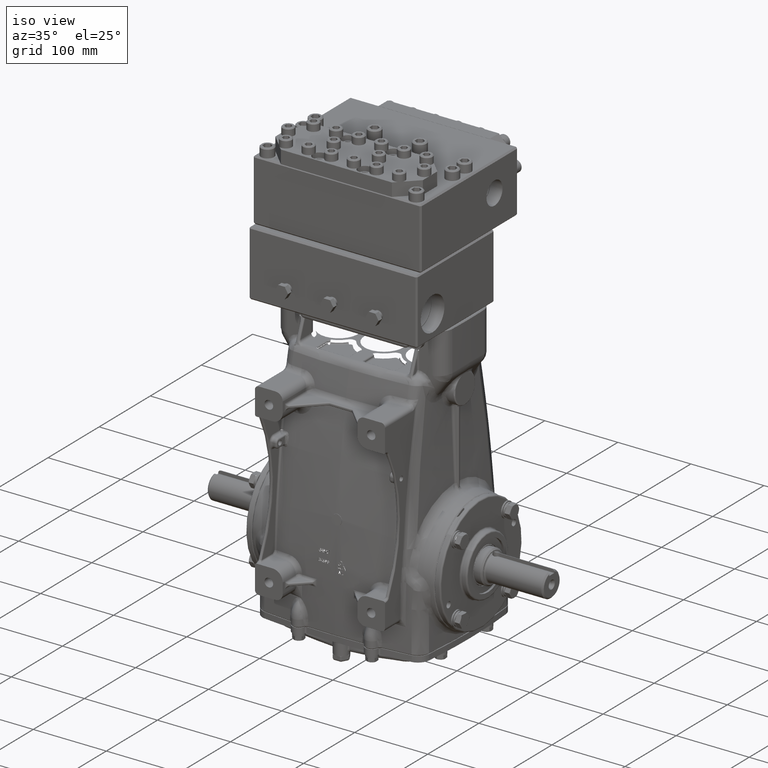
[diagram: clean part render]
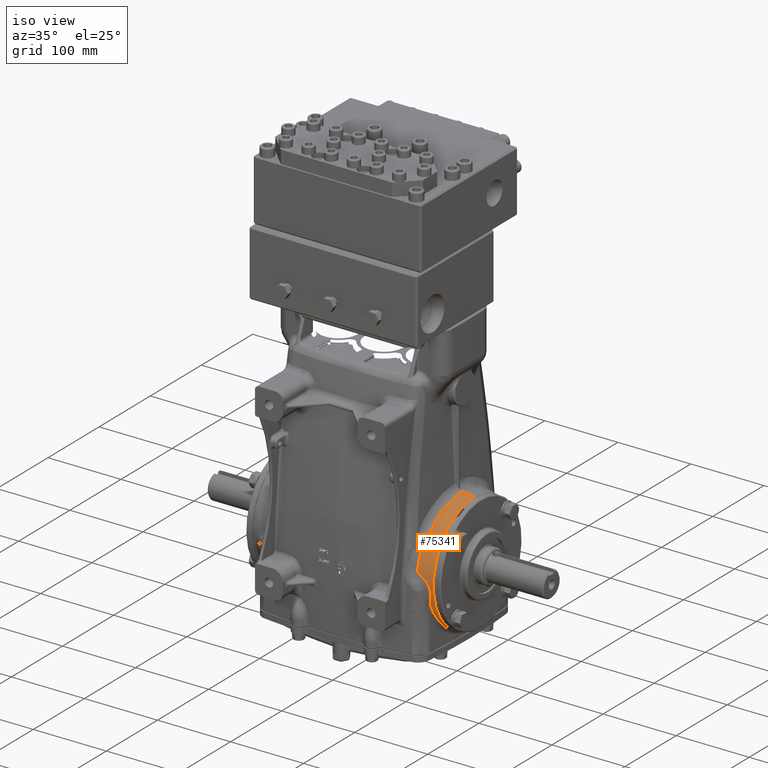
[diagram: same view with one face highlighted and labeled with its STEP entity id]
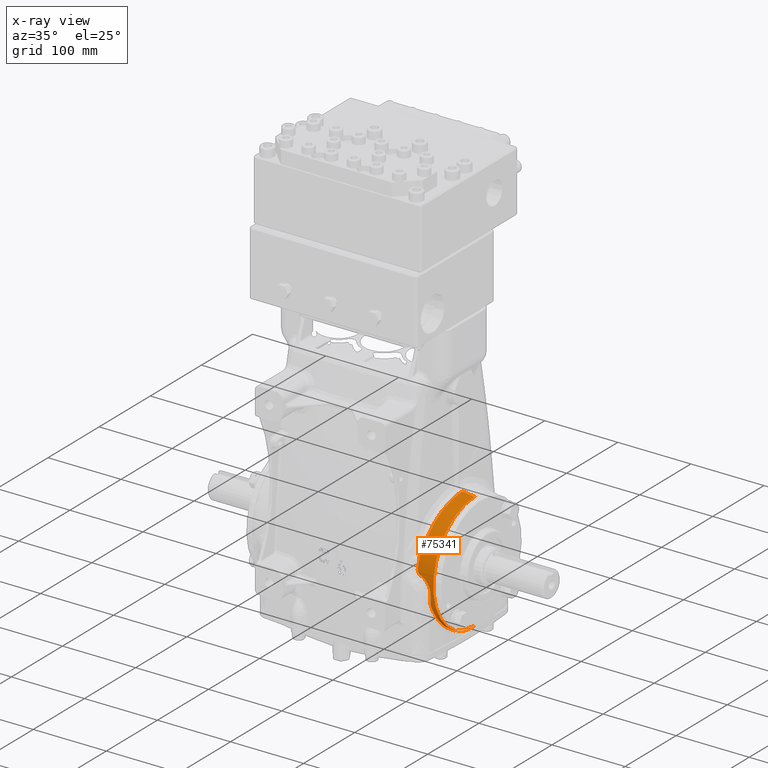
[diagram: x-ray of the same camera — body ghosted, the highlighted face saturated]
A machine part, iso view. The second image highlights one B-rep face of the part: STEP entity #75341.
The next image is the same camera in x-ray: the body ghosted, the highlighted face saturated — about 0% of this face is hidden behind the body in this view.
In plain terms, the highlighted toroidal blend (fillet) surface has major radius 710.174 mm and minor (blend) radius 800 mm.
Its self-contained STEP definition (entity closure, byte-faithful):
#826 = CARTESIAN_POINT ( 'NONE',  ( 4.065177188191593238, -3.083984889762754644, 1.098068107524425852 ) ) ;
#3299 = CARTESIAN_POINT ( 'NONE',  ( 4.790303181778289954, -1.127149556421079390, -2.966354360120121214 ) ) ;
#3318 = DIRECTION ( 'NONE',  ( 1.014631576207059362E-16, 0.0000000000000000000, -1.000000000000000000 ) ) ;
#3615 = DIRECTION ( 'NONE',  ( 0.0000000000000000000, 1.000000000000000000, 0.0000000000000000000 ) ) ;
#3872 = CARTESIAN_POINT ( 'NONE',  ( 4.637802879207589157, -2.974517227941448461, -1.161161906720954651 ) ) ;
#4908 = CARTESIAN_POINT ( 'NONE',  ( 4.241293303835878881, -3.226001539249478522, 0.3907520896382901676 ) ) ;
#5583 = ORIENTED_EDGE ( 'NONE', *, *, #68924, .F. ) ;
#6037 = ORIENTED_EDGE ( 'NONE', *, *, #47970, .F. ) ;
#6362 = AXIS2_PLACEMENT_3D ( 'NONE', #48687, #85116, #3318 ) ;
#7848 = CARTESIAN_POINT ( 'NONE',  ( 4.235682771569069693, -0.6266466288404147766, 3.191829271269768231 ) ) ;
#7949 = B_SPLINE_CURVE_WITH_KNOTS ( 'NONE', 3,
 ( #21232, #57655, #94039, #12242, #48661, #85096, #3299, #39742, #76127, #112506, #30771, #67186, #103577, #21811, #58234, #96234 ),
 .UNSPECIFIED., .F., .F.,
 ( 4, 2, 2, 2, 2, 2, 2, 4 ),
 ( 0.5000483756456942652, 0.5624999999999996669, 0.6249999999999996669, 0.6874999999999996669, 0.7499999999999997780, 0.8749999999999997780, 0.9375000000000000000, 1.000000000000000000 ),
 .UNSPECIFIED. ) ;
#8910 = CARTESIAN_POINT ( 'NONE',  ( 4.726144590640167564, -3.154645668425971827, -0.4274351538967189890 ) ) ;
#9139 = VERTEX_POINT ( 'NONE', #48382 ) ;
#9749 = CARTESIAN_POINT ( 'NONE',  ( 4.068196207595590863, -3.204746991281274049, 0.6630307251519698131 ) ) ;
#10223 = B_SPLINE_CURVE_WITH_KNOTS ( 'NONE', 3,
 ( #45164, #81580, #117965, #36227, #72621, #108993, #27252, #63665 ),
 .UNSPECIFIED., .F., .F.,
 ( 4, 2, 2, 4 ),
 ( 0.0000000000000000000, 0.5000000000000000000, 0.7499999999999998890, 1.000000000000000000 ),
 .UNSPECIFIED. ) ;
#10233 = CARTESIAN_POINT ( 'NONE',  ( 4.874534027504089373, 0.0000000000000000000, -3.156962035488048102 ) ) ;
#10466 = EDGE_CURVE ( 'NONE', #86506, #50681, #67844, .T. ) ;
#12242 = CARTESIAN_POINT ( 'NONE',  ( 4.806998052755426798, -0.5733832258980167129, -3.118500223422494333 ) ) ;
#13190 = CARTESIAN_POINT ( 'NONE',  ( 5.568718060300463558E-15, 3.424064387676790698E-15, -27.95960753795100473 ) ) ;
#13372 = CARTESIAN_POINT ( 'NONE',  ( 4.874534027504088485, -3.866163451790151959E-16, 3.156962035488049434 ) ) ;
#13838 = CARTESIAN_POINT ( 'NONE',  ( 4.476645519390706873, -3.208994383556206920, 0.2276715050428013698 ) ) ;
#15268 = VERTEX_POINT ( 'NONE', #13372 ) ;
#16376 = AXIS2_PLACEMENT_3D ( 'NONE', #57972, #3615, #40072 ) ;
#16814 = CARTESIAN_POINT ( 'NONE',  ( 4.220173851410993215, -1.229921036881801433, 3.013587734413658570 ) ) ;
#17881 = CARTESIAN_POINT ( 'NONE',  ( 4.659041407288404990, -3.069411880862395581, -0.8719676970051276621 ) ) ;
#18468 = ORIENTED_EDGE ( 'NONE', *, *, #47822, .F. ) ;
#20188 = B_SPLINE_CURVE_WITH_KNOTS ( 'NONE', 3,
 ( #71747, #108121, #26388, #62789 ),
 .UNSPECIFIED., .F., .F.,
 ( 4, 4 ),
 ( 0.0000000000000000000, 1.000000000000000000 ),
 .UNSPECIFIED. ) ;
#21232 = CARTESIAN_POINT ( 'NONE',  ( 4.812441923013113687, -1.481110120753864741E-07, -3.166625558008697272 ) ) ;
#21632 = CIRCLE ( 'NONE', #88357, 31.49606299212598515 ) ;
#21811 = CARTESIAN_POINT ( 'NONE',  ( 4.686071756050094628, -2.674197270636395007, -1.737510335107369741 ) ) ;
#22135 = EDGE_LOOP ( 'NONE', ( #50288, #59067, #72796, #6037, #61235, #18468, #70124, #37621, #24852, #5583, #63191 ) ) ;
#22827 = CARTESIAN_POINT ( 'NONE',  ( 4.701623159952063702, -3.183729317627611355, -0.1365620709503548025 ) ) ;
#23970 = CARTESIAN_POINT ( 'NONE',  ( 4.874534027504088485, 0.0000000000000000000, 4.945856143601376801E-16 ) ) ;
#24852 = ORIENTED_EDGE ( 'NONE', *, *, #42240, .F. ) ;
#25792 = CARTESIAN_POINT ( 'NONE',  ( 4.192740757286638420, -1.893362396004754089, 2.661075382058560646 ) ) ;
#26388 = CARTESIAN_POINT ( 'NONE',  ( 4.146795280029016872, -2.739778042975806294, 1.784677835696039105 ) ) ;
#26857 = CARTESIAN_POINT ( 'NONE',  ( 4.637802879207589157, -2.974517227941448461, -1.161161906720954651 ) ) ;
#27252 = CARTESIAN_POINT ( 'NONE',  ( 4.065899536981142148, -3.210822228740024542, 0.6351427620540452956 ) ) ;
#28287 = CARTESIAN_POINT ( 'NONE',  ( 4.073807278298714252, -2.959947933500720829, 1.394250575635964218 ) ) ;
#29954 = CARTESIAN_POINT ( 'NONE',  ( 4.653840769993426996, -2.927867021512045032, -1.274098702111998715 ) ) ;
#30771 = CARTESIAN_POINT ( 'NONE',  ( 4.734056748507328827, -2.115109540578937963, -2.390187588732937574 ) ) ;
#31631 = CIRCLE ( 'NONE', #98366, 3.156962035488045437 ) ;
#34764 = CARTESIAN_POINT ( 'NONE',  ( 4.154195439504829501, -2.605888995820426324, 1.960963033933472488 ) ) ;
#35102 = VERTEX_POINT ( 'NONE', #3872 ) ;
#35351 = CARTESIAN_POINT ( 'NONE',  ( 4.240991282790828265, 4.693753063019659436E-11, 3.249621495888693978 ) ) ;
#35957 = B_SPLINE_CURVE_WITH_KNOTS ( 'NONE', 3,
 ( #9749, #46185, #82618, #826, #37271, #73661, #110045, #28287 ),
 .UNSPECIFIED., .F., .F.,
 ( 4, 2, 2, 4 ),
 ( 0.0000000000000000000, 0.4999999999999998890, 0.7499999999999998890, 1.000000000000000000 ),
 .UNSPECIFIED. ) ;
#36227 = CARTESIAN_POINT ( 'NONE',  ( 4.095643959304354098, -3.226644982486874813, 0.5252720837617583793 ) ) ;
#37271 = CARTESIAN_POINT ( 'NONE',  ( 4.061345028220673115, -3.062310547445739051, 1.158547218389684108 ) ) ;
#37621 = ORIENTED_EDGE ( 'NONE', *, *, #50023, .F. ) ;
#39742 = CARTESIAN_POINT ( 'NONE',  ( 4.778555225248720895, -1.391094182752331765, -2.854125396673355741 ) ) ;
#40072 = DIRECTION ( 'NONE',  ( 0.0000000000000000000, 0.0000000000000000000, 1.000000000000000000 ) ) ;
#42240 = EDGE_CURVE ( 'NONE', #81530, #35102, #104770, .T. ) ;
#44296 = CARTESIAN_POINT ( 'NONE',  ( 4.237652013864519951, -0.5030473467529149589, 3.213374542601915795 ) ) ;
#44575 = VERTEX_POINT ( 'NONE', #52500 ) ;
#45164 = CARTESIAN_POINT ( 'NONE',  ( 4.241293303835878881, -3.226001539249478522, 0.3907520896382901676 ) ) ;
#45339 = CARTESIAN_POINT ( 'NONE',  ( 4.713406592358675873, -3.169753574594053269, -0.2763370845249724650 ) ) ;
#46185 = CARTESIAN_POINT ( 'NONE',  ( 4.078678006966289793, -3.177020150542402277, 0.7903088960410987740 ) ) ;
#47822 = EDGE_CURVE ( 'NONE', #101956, #55521, #10223, .T. ) ;
#47970 = EDGE_CURVE ( 'NONE', #91702, #44575, #20188, .T. ) ;
#48382 = CARTESIAN_POINT ( 'NONE',  ( 4.240991282790828265, 4.693753063019659436E-11, 3.249621495888693978 ) ) ;
#48661 = CARTESIAN_POINT ( 'NONE',  ( 4.803734397380607035, -0.7155610294733516508, -3.089427977752311705 ) ) ;
#48687 = CARTESIAN_POINT ( 'NONE',  ( 2.731847993664263218E-15, 0.0000000000000000000, 0.0000000000000000000 ) ) ;
#49619 = DIRECTION ( 'NONE',  ( 1.242565312115808949E-32, -1.000000000000000000, -1.224646799147353207E-16 ) ) ;
#50023 = EDGE_CURVE ( 'NONE', #35102, #57572, #51024, .T. ) ;
#50277 = CARTESIAN_POINT ( 'NONE',  ( 4.367240834308786290, -3.216752620590586087, 0.3194208989799462994 ) ) ;
#50288 = ORIENTED_EDGE ( 'NONE', *, *, #91485, .F. ) ;
#50436 = CARTESIAN_POINT ( 'NONE',  ( 4.241293303835878881, -3.226001539249478522, 0.3907520896382901676 ) ) ;
#50681 = VERTEX_POINT ( 'NONE', #73708 ) ;
#51024 = B_SPLINE_CURVE_WITH_KNOTS ( 'NONE', 3,
 ( #26857, #63265, #99667, #17881, #54315, #90698, #8910, #45339 ),
 .UNSPECIFIED., .F., .F.,
 ( 4, 2, 2, 4 ),
 ( 0.0000000000000000000, 0.2500000000000000000, 0.5000000000000000000, 1.000000000000000000 ),
 .UNSPECIFIED. ) ;
#52500 = CARTESIAN_POINT ( 'NONE',  ( 4.154195439504829501, -2.605888995820426324, 1.960963033933472488 ) ) ;
#53257 = CARTESIAN_POINT ( 'NONE',  ( 4.227452895496238483, -0.9916091823206050204, 3.099148475327404118 ) ) ;
#54315 = CARTESIAN_POINT ( 'NONE',  ( 4.674638175687860553, -3.086997047895380319, -0.7981781258625720854 ) ) ;
#55521 = VERTEX_POINT ( 'NONE', #66754 ) ;
#57572 = VERTEX_POINT ( 'NONE', #92949 ) ;
#57655 = CARTESIAN_POINT ( 'NONE',  ( 4.812441922088052770, -0.1431869754493966251, -3.166625618446515134 ) ) ;
#57676 = FACE_OUTER_BOUND ( 'NONE', #22135, .T. ) ;
#57866 = TOROIDAL_SURFACE ( 'NONE', #6362, -27.95960753795100473, 31.49606299212598515 ) ;
#57972 = CARTESIAN_POINT ( 'NONE',  ( -1.050220729719372817E-16, 0.0000000000000000000, 27.95960753795100473 ) ) ;
#58234 = CARTESIAN_POINT ( 'NONE',  ( 4.678748902777146945, -2.749955120518025264, -1.617123025120611901 ) ) ;
#59067 = ORIENTED_EDGE ( 'NONE', *, *, #77539, .T. ) ;
#59251 = CARTESIAN_POINT ( 'NONE',  ( 4.650113480402072064, -3.193484163472381177, 0.0007540518981901967463 ) ) ;
#60388 = DIRECTION ( 'NONE',  ( 1.000000000000000000, -0.0000000000000000000, 1.014631576207051350E-16 ) ) ;
#61235 = ORIENTED_EDGE ( 'NONE', *, *, #80600, .F. ) ;
#62204 = CARTESIAN_POINT ( 'NONE',  ( 4.202810139903888853, -1.683555856827035235, 2.796809853205855845 ) ) ;
#62789 = CARTESIAN_POINT ( 'NONE',  ( 4.154195439504829501, -2.605888995820426324, 1.960963033933472488 ) ) ;
#63191 = ORIENTED_EDGE ( 'NONE', *, *, #10466, .F. ) ;
#63265 = CARTESIAN_POINT ( 'NONE',  ( 4.627811670758023688, -3.003579151184962548, -1.090805080114700454 ) ) ;
#63665 = CARTESIAN_POINT ( 'NONE',  ( 4.068196207595590863, -3.204746991281274049, 0.6630307251519698131 ) ) ;
#65659 = CARTESIAN_POINT ( 'NONE',  ( 4.671995195232788944, -2.817595301799574514, -1.491509972633686898 ) ) ;
#66365 = CARTESIAN_POINT ( 'NONE',  ( 4.637802879207589157, -2.974517227941448461, -1.161161906720954651 ) ) ;
#66754 = CARTESIAN_POINT ( 'NONE',  ( 4.068196207595590863, -3.204746991281274049, 0.6630307251519698131 ) ) ;
#67186 = CARTESIAN_POINT ( 'NONE',  ( 4.709561670205832939, -2.414074059703260833, -2.078551350158719835 ) ) ;
#67844 = CIRCLE ( 'NONE', #16376, 31.49606299212598515 ) ;
#68924 = EDGE_CURVE ( 'NONE', #50681, #81530, #7949, .T. ) ;
#70124 = ORIENTED_EDGE ( 'NONE', *, *, #115647, .F. ) ;
#71160 = CARTESIAN_POINT ( 'NONE',  ( 4.162494047696327470, -2.455744562737092185, 2.158650908438247917 ) ) ;
#71747 = CARTESIAN_POINT ( 'NONE',  ( 4.073807278298714252, -2.959947933500720829, 1.394250575635964218 ) ) ;
#72621 = CARTESIAN_POINT ( 'NONE',  ( 4.083574776814294260, -3.223938539801954217, 0.5512469625813745111 ) ) ;
#72796 = ORIENTED_EDGE ( 'NONE', *, *, #79774, .F. ) ;
#73661 = CARTESIAN_POINT ( 'NONE',  ( 4.059840737327628624, -3.014675423165702028, 1.277885004256982260 ) ) ;
#73708 = CARTESIAN_POINT ( 'NONE',  ( 4.812441923013113687, -1.481110120753864741E-07, -3.166625558008697272 ) ) ;
#75300 = CARTESIAN_POINT ( 'NONE',  ( 4.671995195232788944, -2.817595301799574514, -1.491509972633686898 ) ) ;
#75341 = ADVANCED_FACE ( 'NONE', ( #57676 ), #57866, .T. ) ;
#76127 = CARTESIAN_POINT ( 'NONE',  ( 4.771837944189591951, -1.520853784674521147, -2.788342514089747759 ) ) ;
#77539 = EDGE_CURVE ( 'NONE', #15268, #9139, #21632, .T. ) ;
#79774 = EDGE_CURVE ( 'NONE', #44575, #9139, #87166, .T. ) ;
#80600 = EDGE_CURVE ( 'NONE', #55521, #91702, #35957, .T. ) ;
#80708 = CARTESIAN_POINT ( 'NONE',  ( 4.240305217706549890, -0.2533055434038216092, 3.242258551654292553 ) ) ;
#81530 = VERTEX_POINT ( 'NONE', #65659 ) ;
#81580 = CARTESIAN_POINT ( 'NONE',  ( 4.189968773506881128, -3.229987173090322017, 0.4158523669530884703 ) ) ;
#82618 = CARTESIAN_POINT ( 'NONE',  ( 4.074960399868632344, -3.143860997543816982, 0.9148230346869269392 ) ) ;
#85096 = CARTESIAN_POINT ( 'NONE',  ( 4.795392943022132037, -0.9920313528584013829, -3.013406244147627255 ) ) ;
#85116 = DIRECTION ( 'NONE',  ( -1.000000000000000000, 0.0000000000000000000, -1.014631576207059362E-16 ) ) ;
#86047 = DIRECTION ( 'NONE',  ( 0.0000000000000000000, 1.224646799147353454E-16, -1.000000000000000000 ) ) ;
#86506 = VERTEX_POINT ( 'NONE', #10233 ) ;
#86691 = CARTESIAN_POINT ( 'NONE',  ( 4.306769883665692689, -3.220916920437658870, 0.3587307481807804899 ) ) ;
#87166 = B_SPLINE_CURVE_WITH_KNOTS ( 'NONE', 3,
 ( #34764, #71160, #107522, #25792, #62204, #98610, #16814, #53257, #89644, #7848, #44296, #80708, #117090, #35351 ),
 .UNSPECIFIED., .F., .F.,
 ( 4, 2, 2, 2, 2, 2, 4 ),
 ( 0.0000000000000000000, 0.1250000000000001665, 0.2500000000000002776, 0.3125000000000003331, 0.3750000000000003886, 0.4375000000000003886, 0.4998300329576842449 ),
 .UNSPECIFIED. ) ;
#88357 = AXIS2_PLACEMENT_3D ( 'NONE', #13190, #49619, #86047 ) ;
#89644 = CARTESIAN_POINT ( 'NONE',  ( 4.230583354813282959, -0.8709274565133807711, 3.134715635904268716 ) ) ;
#90698 = CARTESIAN_POINT ( 'NONE',  ( 4.712714316162791128, -3.132927912143915083, -0.5762095819734214253 ) ) ;
#91485 = EDGE_CURVE ( 'NONE', #15268, #86506, #31631, .T. ) ;
#91702 = VERTEX_POINT ( 'NONE', #112169 ) ;
#92949 = CARTESIAN_POINT ( 'NONE',  ( 4.713406592358675873, -3.169753574594053269, -0.2763370845249724650 ) ) ;
#94039 = CARTESIAN_POINT ( 'NONE',  ( 4.811355340674883685, -0.2864910433851791671, -3.157124972228495086 ) ) ;
#95637 = CARTESIAN_POINT ( 'NONE',  ( 4.526293261852023520, -3.205334629084368725, 0.1742590804353988387 ) ) ;
#96234 = CARTESIAN_POINT ( 'NONE',  ( 4.671995195232788944, -2.817595301799574514, -1.491509972633686898 ) ) ;
#96765 = DIRECTION ( 'NONE',  ( 1.730681562182256507E-16, 0.0000000000000000000, -1.000000000000000000 ) ) ;
#98366 = AXIS2_PLACEMENT_3D ( 'NONE', #23970, #60388, #96765 ) ;
#98610 = CARTESIAN_POINT ( 'NONE',  ( 4.216049932389253740, -1.346590706294731099, 2.963853008133497280 ) ) ;
#99667 = CARTESIAN_POINT ( 'NONE',  ( 4.635675277813445128, -3.027706349366337424, -1.018264804609938068 ) ) ;
#101956 = VERTEX_POINT ( 'NONE', #50436 ) ;
#103577 = CARTESIAN_POINT ( 'NONE',  ( 4.701454750326896637, -2.506536445759398823, -1.967938369618047689 ) ) ;
#104578 = CARTESIAN_POINT ( 'NONE',  ( 4.713406592358675873, -3.169753574594053269, -0.2763370845249724650 ) ) ;
#104770 = B_SPLINE_CURVE_WITH_KNOTS ( 'NONE', 3,
 ( #75300, #111689, #29954, #66365 ),
 .UNSPECIFIED., .F., .F.,
 ( 4, 4 ),
 ( 0.0000000000000000000, 1.000000000000000000 ),
 .UNSPECIFIED. ) ;
#107351 = B_SPLINE_CURVE_WITH_KNOTS ( 'NONE', 3,
 ( #104578, #22827, #59251, #95637, #13838, #50277, #86691, #4908 ),
 .UNSPECIFIED., .F., .F.,
 ( 4, 2, 2, 4 ),
 ( 0.0000000000000000000, 0.4999999999999998890, 0.7500000000000000000, 1.000000000000000000 ),
 .UNSPECIFIED. ) ;
#107522 = CARTESIAN_POINT ( 'NONE',  ( 4.172413239403286234, -2.282509996542392283, 2.339665665247994131 ) ) ;
#108121 = CARTESIAN_POINT ( 'NONE',  ( 4.114205068007505517, -2.860559231075403996, 1.592883702391712397 ) ) ;
#108993 = CARTESIAN_POINT ( 'NONE',  ( 4.068598189055826708, -3.216070234104933867, 0.6060814687319485694 ) ) ;
#110045 = CARTESIAN_POINT ( 'NONE',  ( 4.062115507457966679, -2.988712625195999451, 1.336762948548139152 ) ) ;
#111689 = CARTESIAN_POINT ( 'NONE',  ( 4.666255815391464168, -2.875076720657021578, -1.384762528334551934 ) ) ;
#112169 = CARTESIAN_POINT ( 'NONE',  ( 4.073807278298714252, -2.959947933500720829, 1.394250575635964218 ) ) ;
#112506 = CARTESIAN_POINT ( 'NONE',  ( 4.750268013655625232, -1.891747720313454284, -2.567528510850987988 ) ) ;
#115647 = EDGE_CURVE ( 'NONE', #57572, #101956, #107351, .T. ) ;
#117090 = CARTESIAN_POINT ( 'NONE',  ( 4.240991227555344523, -0.1264003216158212650, 3.249621060336789657 ) ) ;
#117965 = CARTESIAN_POINT ( 'NONE',  ( 4.143842590774164947, -3.231423251180023382, 0.4531311649784011686 ) ) ;